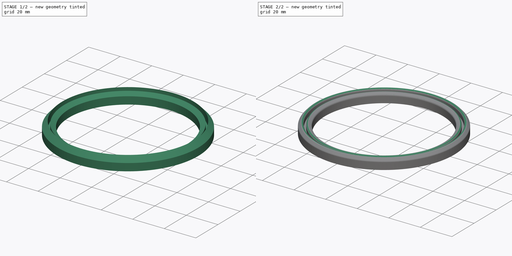
[diagram: build sequence overview — one tinted view per stage of 2, left to right]
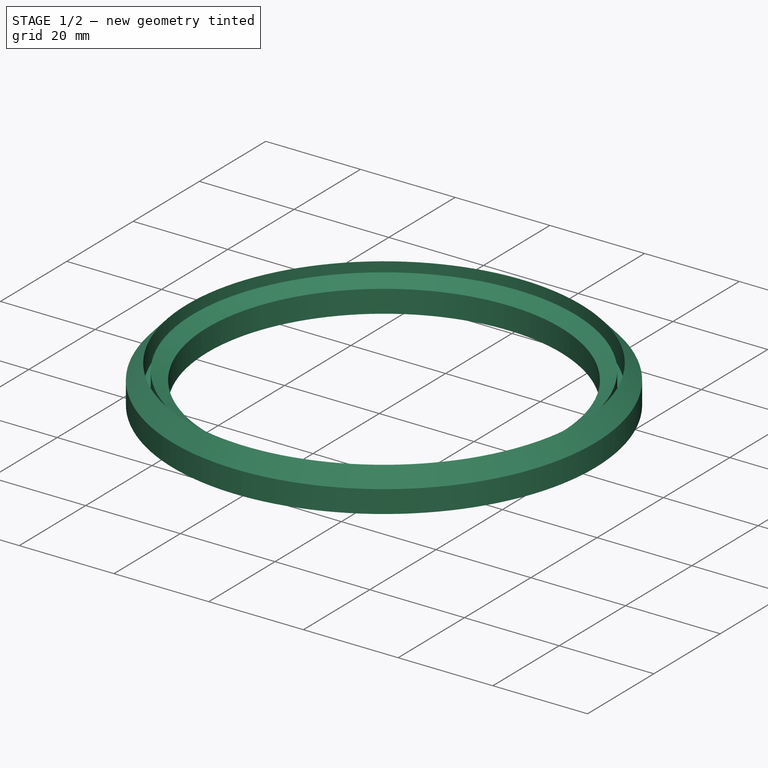
[diagram: stage 1 of 2 — iso view after this stage's code; geometry added in this stage tinted green]
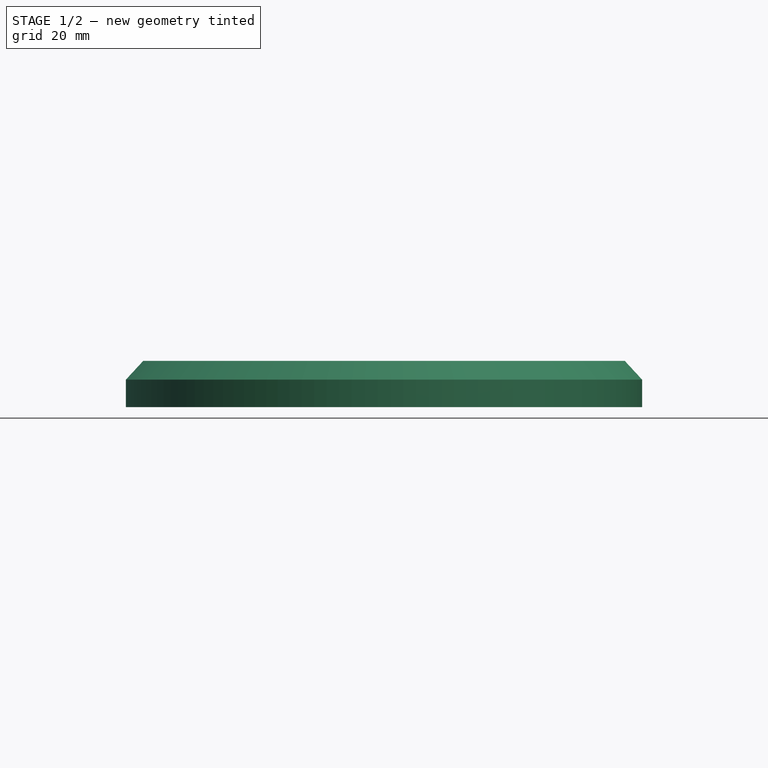
[diagram: stage 1 of 2 — front view after this stage's code; geometry added in this stage tinted green]
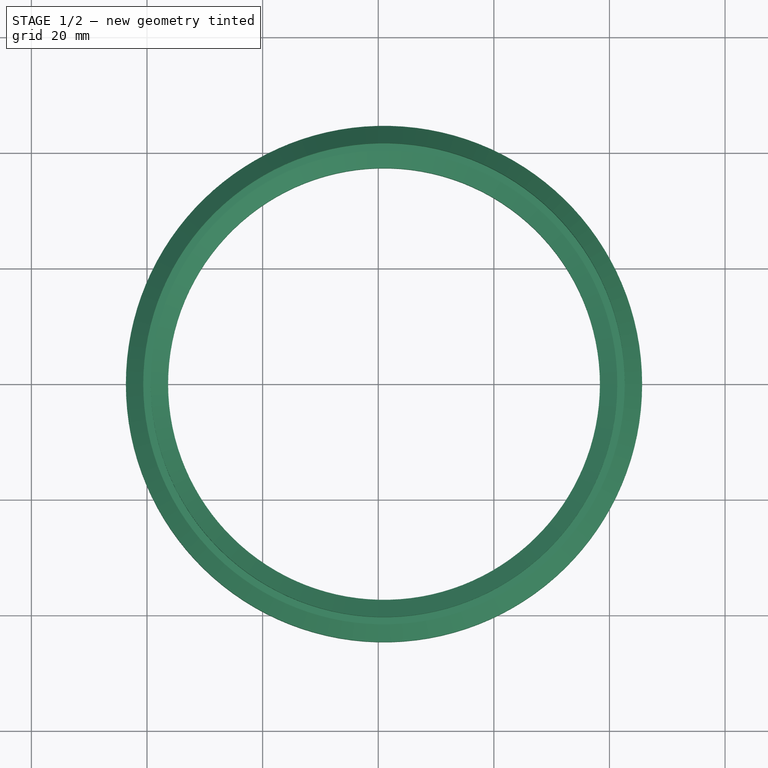
[diagram: stage 1 of 2 — top view after this stage's code; geometry added in this stage tinted green]
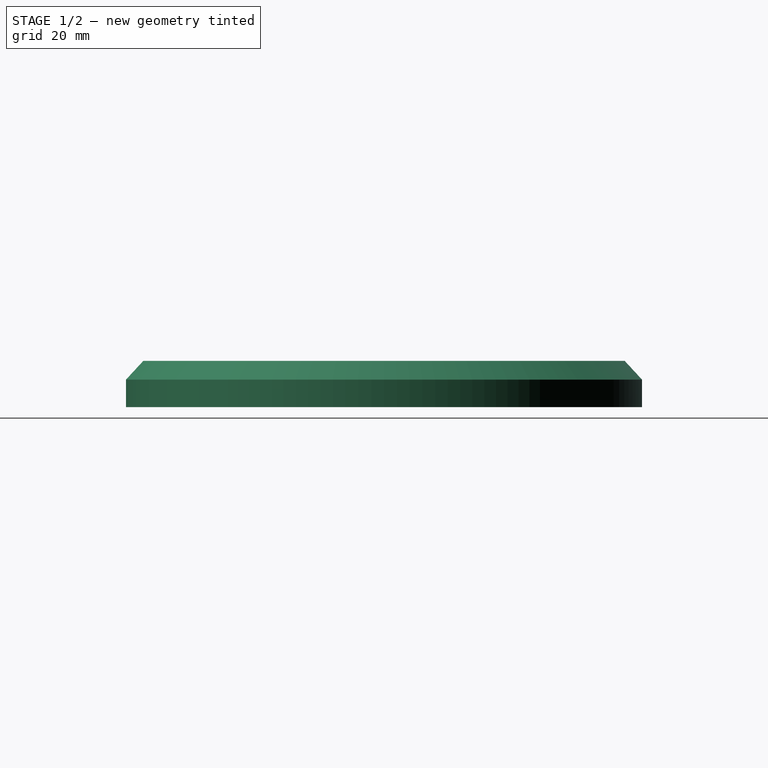
[diagram: stage 1 of 2 — right view after this stage's code; geometry added in this stage tinted green]
FCSTD DOCUMENT  (FreeCAD 0.18.4R)
Label: money_collector
License: All rights reserved
LicenseURL: http://en.wikipedia.org/wiki/All_rights_reserved
objects: Sketcher::SketchObject×1, Part::Revolution×1, Part::Fillet×1, App::Part×1
note: 3 computed .brp shape members not serialized (recipe doc carries the construction recipe); baked Part::Feature solids carry a one-line shape summary decoded from their .brp

FEATURE [Sketcher::SketchObject] Sketch
  MapMode = 5
  Placement = pos=(0,0,0) rot=(1,0,0;1.5708rad)
  sketch-geometry (8):
    g0: LineSegment StartX=-3.65 StartY=-4.75 StartZ=0 EndX=3.65 EndY=-4.75 EndZ=0
    g1: LineSegment StartX=3.65 StartY=-4.75 StartZ=0 EndX=3.65 EndY=0 EndZ=0
    g2: LineSegment StartX=3.65 StartY=0 StartZ=0 EndX=0.65 EndY=1.75 EndZ=0
    g3: LineSegment StartX=0.65 StartY=1.75 StartZ=0 EndX=0.65 EndY=-1.75 EndZ=0
    g4: LineSegment StartX=0.65 StartY=-1.75 StartZ=0 EndX=-0.65 EndY=-1.75 EndZ=0
    g5: LineSegment StartX=-0.65 StartY=-1.75 StartZ=0 EndX=-0.65 EndY=3.25 EndZ=0
    g6: LineSegment StartX=-0.65 StartY=3.25 StartZ=0 EndX=-3.65 EndY=0 EndZ=0
    g7: LineSegment StartX=-3.65 StartY=0 StartZ=0 EndX=-3.65 EndY=-4.75 EndZ=0
  constraints (21):
    c: Coincident(g0,g1)
    c: Vertical(g1)
    c: Coincident(g1,g2)
    c: Coincident(g2,g3)
    c: Coincident(g3,g4)
    c: Coincident(g4,g5)
    c: Vertical(g5)
    c: Coincident(g6,g7)
    c: Coincident(g7,g0)
    c: Vertical(g7)
    c: Equal(g7,g1)
    c: DistanceX(g5,g2) = 1.3
    c: DistanceX(g0,g4) = 3
    c: Symmetric(g0,g0,g-2)
    c: DistanceY(g0,g4) = 3
    c: DistanceY(g-1,g6) = 0
    c: Coincident(g5,g6)
    c: Symmetric(g3,g4,g-2)
    c: DistanceY(g5,g5) = 5
    c: DistanceY(g3,g3) = 3.5
    c: Symmetric(g2,g3,g-1)
FEATURE [Part::Revolution] Revolve
  Angle = 360
  Axis = (0,0,1)
  Base = (41,0,0)
  FaceMakerClass = Part::FaceMakerBullseye
  Solid = true
  Source = -> Sketch
  Symmetric = false
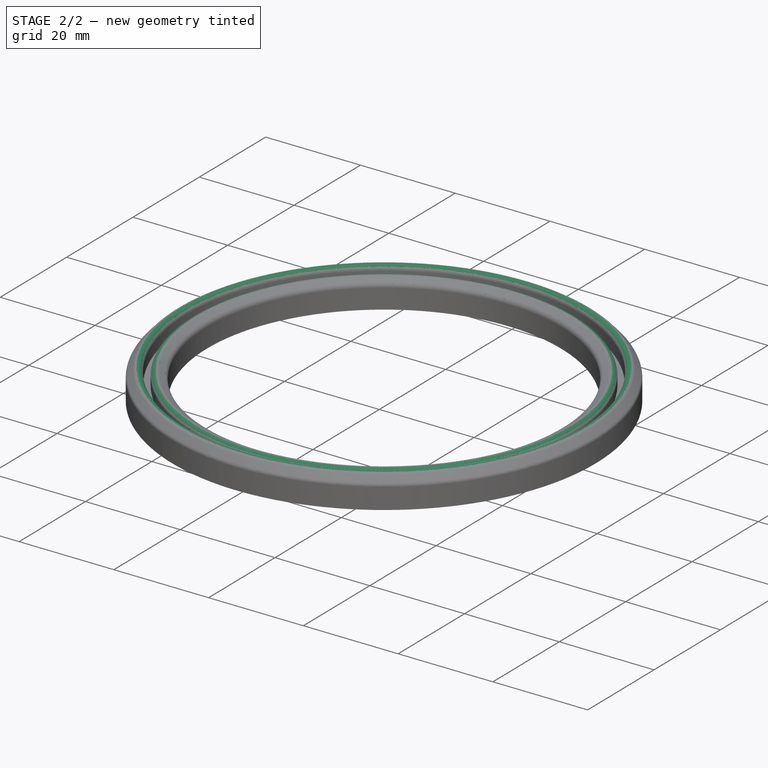
[diagram: stage 2 of 2 — iso view after this stage's code; geometry added in this stage tinted green]
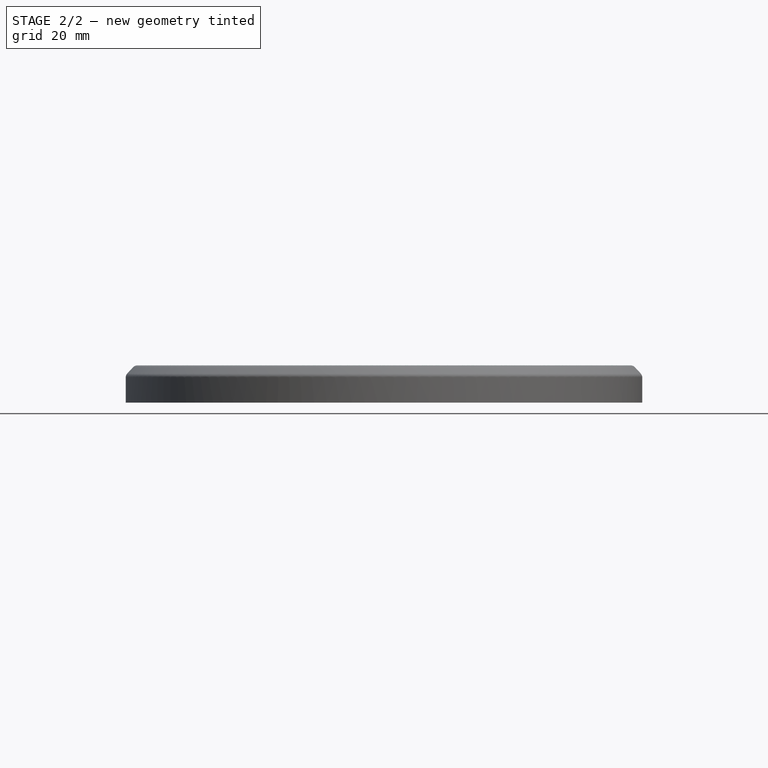
[diagram: stage 2 of 2 — front view after this stage's code; geometry added in this stage tinted green]
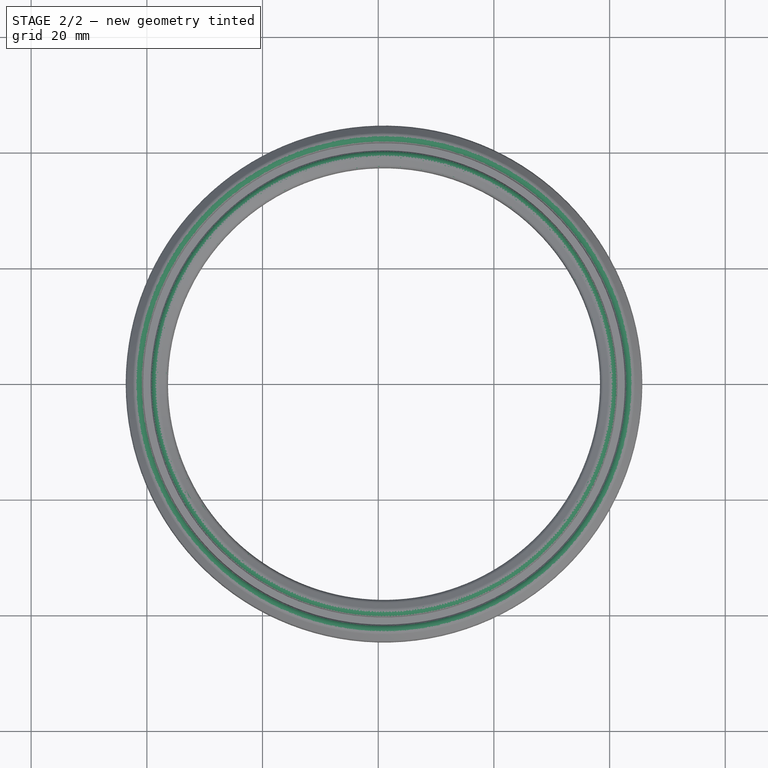
[diagram: stage 2 of 2 — top view after this stage's code; geometry added in this stage tinted green]
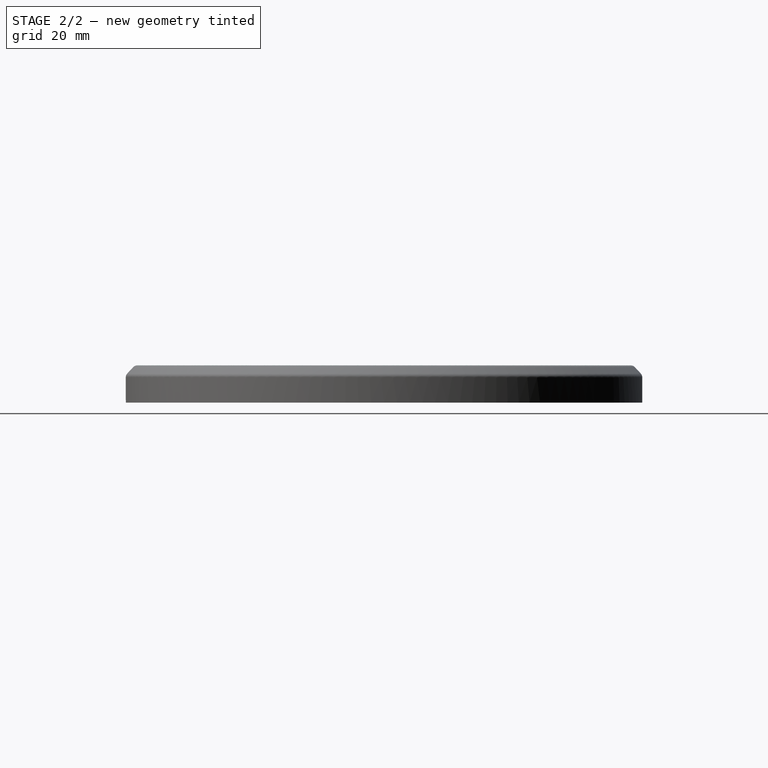
[diagram: stage 2 of 2 — right view after this stage's code; geometry added in this stage tinted green]
FEATURE [Part::Fillet] Fillet
  Base = -> Revolve
  Edges = 4 edges r=1: [Edge3,Edge5,Edge10,Edge12]
FEATURE [App::Part] Part001  label="money collector shoe"
  Group = -> [Sketch,Revolve,Fillet]
  Origin = -> Origin002
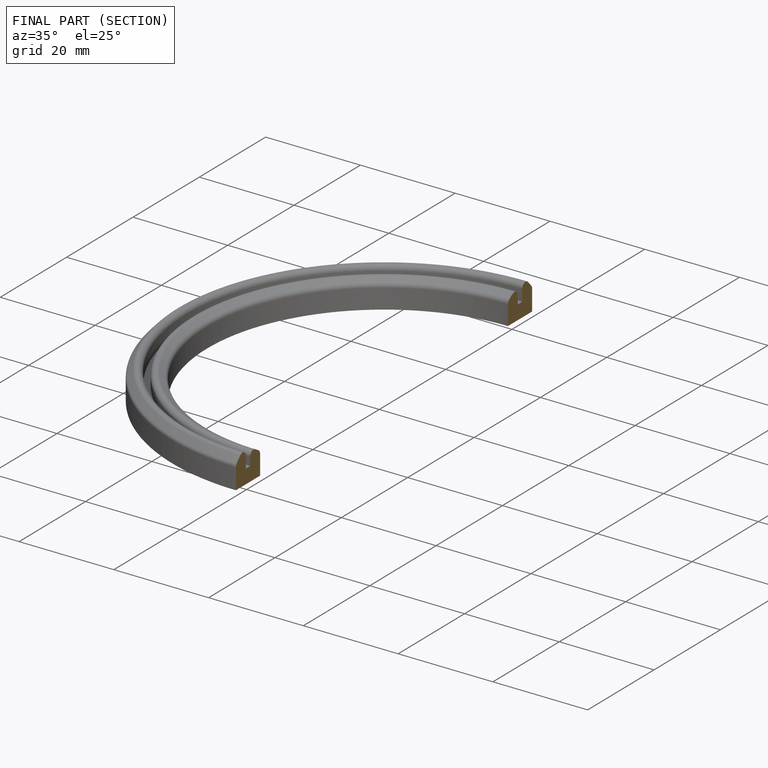
[diagram: finished part — half-section view (interior)]
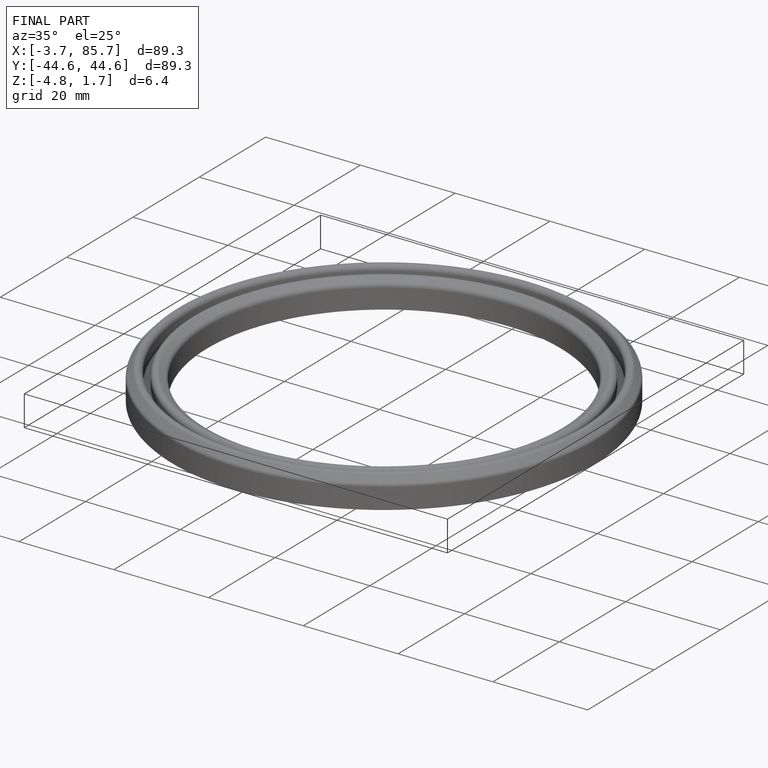
[diagram: finished part — iso view with bounding-box wireframe]
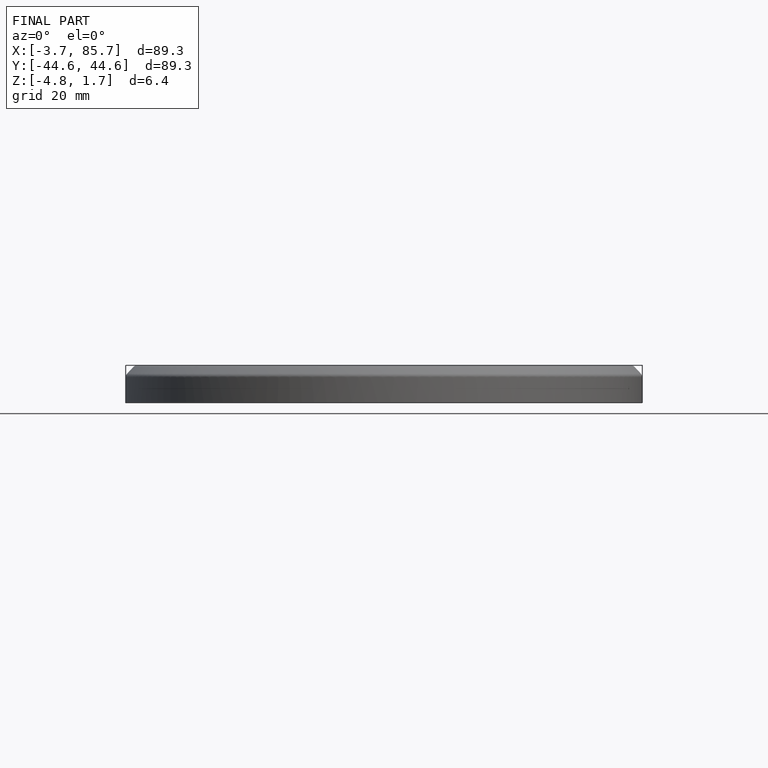
[diagram: finished part — front view with bounding-box wireframe]
